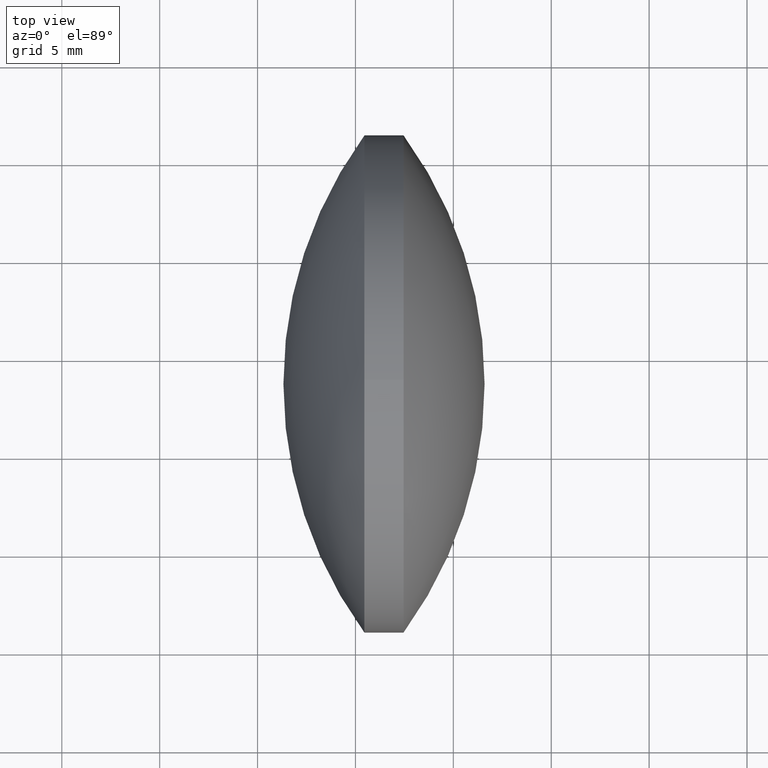
[diagram: clean part render]
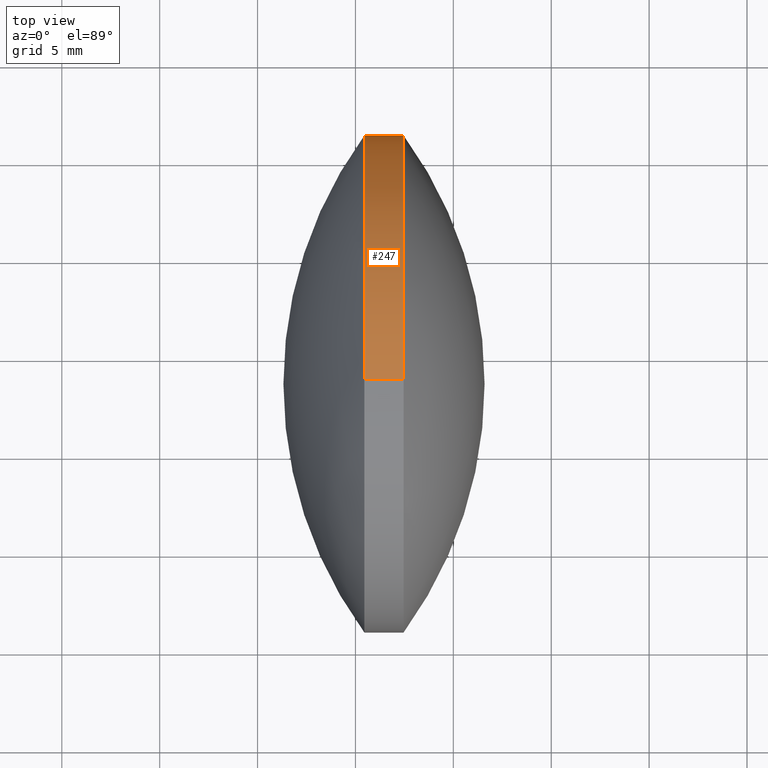
[diagram: same view with one face highlighted and labeled with its STEP entity id]
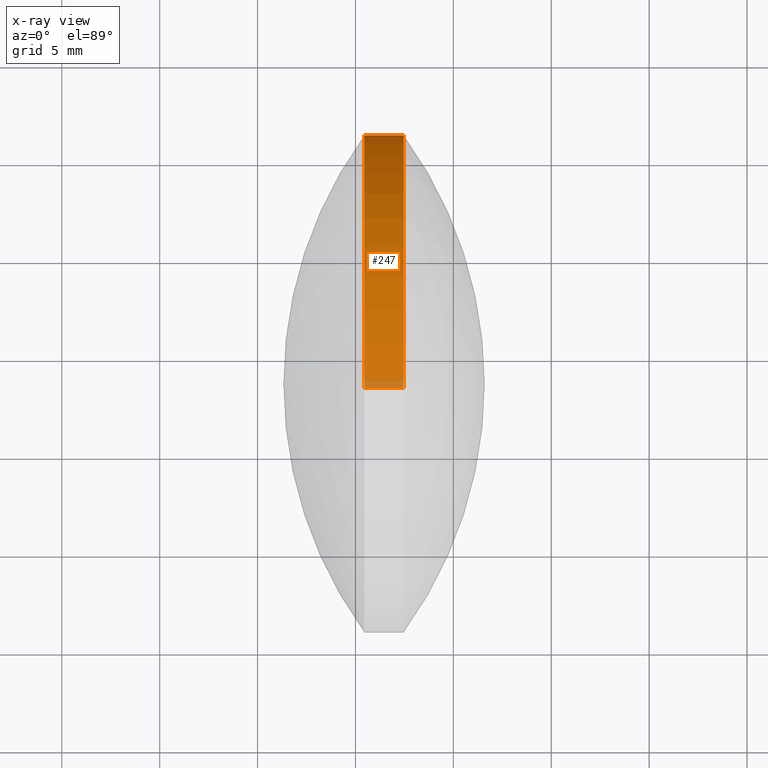
[diagram: x-ray of the same camera — body ghosted, the highlighted face saturated]
A machine part, top view. The second image highlights one B-rep face of the part: STEP entity #247.
The next image is the same camera in x-ray: the body ghosted, the highlighted face saturated — about 3% of this face is hidden behind the body in this view.
In plain terms, the highlighted cylindrical surface (partial cylindrical patch) has radius 12.7 mm, axis along (-1, -0, -0).
Its self-contained STEP definition (entity closure, byte-faithful):
#4 = AXIS2_PLACEMENT_3D ( 'NONE', #295, #183, #216 ) ;
#21 = AXIS2_PLACEMENT_3D ( 'NONE', #78, #308, #275 ) ;
#29 = VECTOR ( 'NONE', #266, 1000.000000000000000 ) ;
#42 = CARTESIAN_POINT ( 'NONE',  ( 85.45852234609111500, 48.61611302318478100, -12.69999999999999600 ) ) ;
#44 = DIRECTION ( 'NONE',  ( -1.000000000000000000, -0.0000000000000000000, -0.0000000000000000000 ) ) ;
#46 = VERTEX_POINT ( 'NONE', #42 ) ;
#59 = EDGE_CURVE ( 'NONE', #299, #302, #100, .T. ) ;
#63 = LINE ( 'NONE', #300, #117 ) ;
#68 = CARTESIAN_POINT ( 'NONE',  ( 85.45852234609111500, 61.31611302318477600, 0.0000000000000000000 ) ) ;
#78 = CARTESIAN_POINT ( 'NONE',  ( 87.45786520323396500, 48.61611302318478100, 0.0000000000000000000 ) ) ;
#87 = DIRECTION ( 'NONE',  ( -1.000000000000000000, -0.0000000000000000000, -0.0000000000000000000 ) ) ;
#95 = AXIS2_PLACEMENT_3D ( 'NONE', #98, #44, #168 ) ;
#98 = CARTESIAN_POINT ( 'NONE',  ( 85.45852234609111500, 48.61611302318478100, 0.0000000000000000000 ) ) ;
#100 = LINE ( 'NONE', #237, #29 ) ;
#101 = DIRECTION ( 'NONE',  ( -1.000000000000000000, -0.0000000000000000000, -0.0000000000000000000 ) ) ;
#108 = EDGE_CURVE ( 'NONE', #138, #193, #130, .T. ) ;
#117 = VECTOR ( 'NONE', #101, 1000.000000000000000 ) ;
#126 = CARTESIAN_POINT ( 'NONE',  ( 87.45786520323396500, 61.31611302318477600, 0.0000000000000000000 ) ) ;
#127 = DIRECTION ( 'NONE',  ( -1.000000000000000000, -0.0000000000000000000, -0.0000000000000000000 ) ) ;
#130 = CIRCLE ( 'NONE', #224, 12.69999999999999600 ) ;
#138 = VERTEX_POINT ( 'NONE', #126 ) ;
#141 = CARTESIAN_POINT ( 'NONE',  ( 87.45786520323396500, 48.61611302318478100, 12.69999999999999600 ) ) ;
#142 = ORIENTED_EDGE ( 'NONE', *, *, #59, .F. ) ;
#145 = EDGE_CURVE ( 'NONE', #302, #229, #232, .T. ) ;
#167 = ORIENTED_EDGE ( 'NONE', *, *, #203, .F. ) ;
#168 = DIRECTION ( 'NONE',  ( 0.0000000000000000000, 0.0000000000000000000, 1.000000000000000000 ) ) ;
#173 = ORIENTED_EDGE ( 'NONE', *, *, #108, .T. ) ;
#183 = DIRECTION ( 'NONE',  ( -1.000000000000000000, -0.0000000000000000000, -0.0000000000000000000 ) ) ;
#193 = VERTEX_POINT ( 'NONE', #242 ) ;
#203 = EDGE_CURVE ( 'NONE', #229, #46, #297, .T. ) ;
#204 = CARTESIAN_POINT ( 'NONE',  ( 87.45786520323396500, 48.61611302318478100, 0.0000000000000000000 ) ) ;
#209 = DIRECTION ( 'NONE',  ( 0.0000000000000000000, 0.0000000000000000000, 1.000000000000000000 ) ) ;
#211 = CYLINDRICAL_SURFACE ( 'NONE', #4, 12.69999999999999600 ) ;
#212 = EDGE_LOOP ( 'NONE', ( #173, #283, #167, #310, #142, #222 ) ) ;
#216 = DIRECTION ( 'NONE',  ( 0.0000000000000000000, 0.0000000000000000000, 1.000000000000000000 ) ) ;
#222 = ORIENTED_EDGE ( 'NONE', *, *, #259, .T. ) ;
#224 = AXIS2_PLACEMENT_3D ( 'NONE', #204, #87, #262 ) ;
#229 = VERTEX_POINT ( 'NONE', #68 ) ;
#232 = CIRCLE ( 'NONE', #280, 12.69999999999999600 ) ;
#237 = CARTESIAN_POINT ( 'NONE',  ( 79.30540135083715800, 48.61611302318478100, 12.69999999999999600 ) ) ;
#242 = CARTESIAN_POINT ( 'NONE',  ( 87.45786520323396500, 48.61611302318478100, -12.69999999999999600 ) ) ;
#247 = ADVANCED_FACE ( 'NONE', ( #258 ), #211, .T. ) ;
#253 = EDGE_CURVE ( 'NONE', #193, #46, #63, .T. ) ;
#258 = FACE_OUTER_BOUND ( 'NONE', #212, .T. ) ;
#259 = EDGE_CURVE ( 'NONE', #299, #138, #343, .T. ) ;
#262 = DIRECTION ( 'NONE',  ( 0.0000000000000000000, 0.0000000000000000000, 1.000000000000000000 ) ) ;
#266 = DIRECTION ( 'NONE',  ( -1.000000000000000000, -0.0000000000000000000, -0.0000000000000000000 ) ) ;
#275 = DIRECTION ( 'NONE',  ( 0.0000000000000000000, 0.0000000000000000000, 1.000000000000000000 ) ) ;
#280 = AXIS2_PLACEMENT_3D ( 'NONE', #292, #127, #209 ) ;
#283 = ORIENTED_EDGE ( 'NONE', *, *, #253, .T. ) ;
#292 = CARTESIAN_POINT ( 'NONE',  ( 85.45852234609111500, 48.61611302318478100, 0.0000000000000000000 ) ) ;
#295 = CARTESIAN_POINT ( 'NONE',  ( 79.30540135083715800, 48.61611302318478100, 0.0000000000000000000 ) ) ;
#297 = CIRCLE ( 'NONE', #95, 12.69999999999999600 ) ;
#299 = VERTEX_POINT ( 'NONE', #141 ) ;
#300 = CARTESIAN_POINT ( 'NONE',  ( 79.30540135083715800, 48.61611302318478100, -12.69999999999999600 ) ) ;
#302 = VERTEX_POINT ( 'NONE', #324 ) ;
#308 = DIRECTION ( 'NONE',  ( -1.000000000000000000, -0.0000000000000000000, -0.0000000000000000000 ) ) ;
#310 = ORIENTED_EDGE ( 'NONE', *, *, #145, .F. ) ;
#324 = CARTESIAN_POINT ( 'NONE',  ( 85.45852234609111500, 48.61611302318478100, 12.69999999999999600 ) ) ;
#343 = CIRCLE ( 'NONE', #21, 12.69999999999999600 ) ;